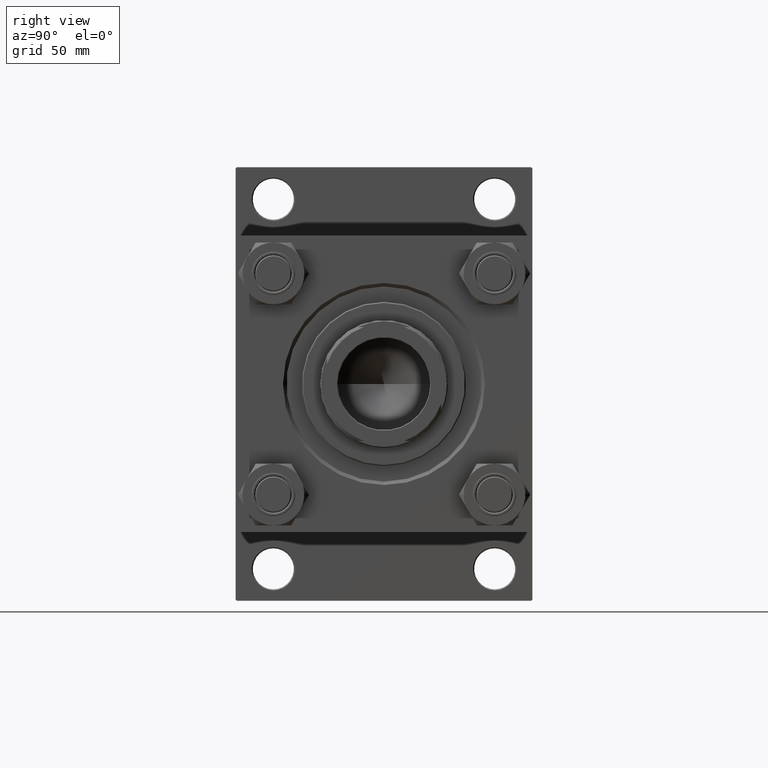
[diagram: clean part render]
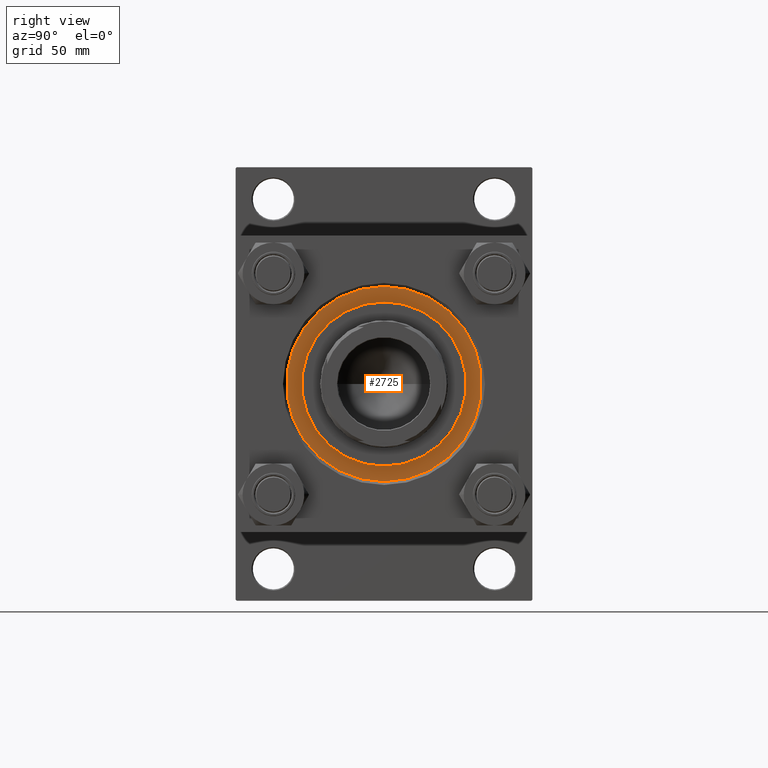
[diagram: same view with one face highlighted and labeled with its STEP entity id]
A machine part, right view. The second image highlights one B-rep face of the part: STEP entity #2725.
In plain terms, the highlighted planar face has unit normal (1, 0, 0).
Its self-contained STEP definition (entity closure, byte-faithful):
#2725 = ADVANCED_FACE ( 'NONE', ( #23687, #28254 ), #5003, .T. ) ;
#4136 = EDGE_CURVE ( 'NONE', #39025, #37371, #6841, .T. ) ;
#5003 = PLANE ( 'NONE',  #32868 ) ;
#6107 = DIRECTION ( 'NONE',  ( 1.000000000000000000, 0.000000000000000000, 0.000000000000000000 ) ) ;
#6841 = CIRCLE ( 'NONE', #10930, 42.75000000000000000 ) ;
#10105 = ORIENTED_EDGE ( 'NONE', *, *, #18329, .F. ) ;
#10124 = VERTEX_POINT ( 'NONE', #13379 ) ;
#10358 = AXIS2_PLACEMENT_3D ( 'NONE', #19509, #11323, #11572 ) ;
#10930 = AXIS2_PLACEMENT_3D ( 'NONE', #21459, #24783, #6107 ) ;
#11207 = CIRCLE ( 'NONE', #10358, 36.00000000000000000 ) ;
#11323 = DIRECTION ( 'NONE',  ( 0.000000000000000000, 0.000000000000000000, 1.000000000000000000 ) ) ;
#11572 = DIRECTION ( 'NONE',  ( 1.000000000000000000, 0.000000000000000000, 0.000000000000000000 ) ) ;
#12426 = ORIENTED_EDGE ( 'NONE', *, *, #28695, .F. ) ;
#13379 = CARTESIAN_POINT ( 'NONE',  ( -36.00000000000000000, 0.000000000000000000, 28.69999999999999929 ) ) ;
#15508 = ORIENTED_EDGE ( 'NONE', *, *, #32423, .T. ) ;
#18329 = EDGE_CURVE ( 'NONE', #10124, #18950, #33808, .T. ) ;
#18950 = VERTEX_POINT ( 'NONE', #25431 ) ;
#19509 = CARTESIAN_POINT ( 'NONE',  ( 0.000000000000000000, 0.000000000000000000, 28.69999999999999929 ) ) ;
#20113 = DIRECTION ( 'NONE',  ( 0.000000000000000000, 0.000000000000000000, 1.000000000000000000 ) ) ;
#21459 = CARTESIAN_POINT ( 'NONE',  ( 0.000000000000000000, 0.000000000000000000, 28.69999999999999929 ) ) ;
#21938 = AXIS2_PLACEMENT_3D ( 'NONE', #27656, #43231, #36054 ) ;
#23687 = FACE_BOUND ( 'NONE', #38931, .T. ) ;
#24783 = DIRECTION ( 'NONE',  ( 0.000000000000000000, 0.000000000000000000, 1.000000000000000000 ) ) ;
#24941 = DIRECTION ( 'NONE',  ( 1.000000000000000000, 0.000000000000000000, -0.000000000000000000 ) ) ;
#25431 = CARTESIAN_POINT ( 'NONE',  ( 36.00000000000000000, 4.408728476930470856E-15, 28.69999999999999929 ) ) ;
#26166 = ORIENTED_EDGE ( 'NONE', *, *, #4136, .T. ) ;
#27656 = CARTESIAN_POINT ( 'NONE',  ( 0.000000000000000000, 0.000000000000000000, 28.69999999999999929 ) ) ;
#28113 = AXIS2_PLACEMENT_3D ( 'NONE', #31451, #39103, #42951 ) ;
#28254 = FACE_OUTER_BOUND ( 'NONE', #44477, .T. ) ;
#28695 = EDGE_CURVE ( 'NONE', #18950, #10124, #11207, .T. ) ;
#29904 = CARTESIAN_POINT ( 'NONE',  ( 42.75000000000000000, 5.235365066354935472E-15, 28.69999999999999929 ) ) ;
#31451 = CARTESIAN_POINT ( 'NONE',  ( 0.000000000000000000, 0.000000000000000000, 28.69999999999999929 ) ) ;
#32423 = EDGE_CURVE ( 'NONE', #37371, #39025, #43939, .T. ) ;
#32868 = AXIS2_PLACEMENT_3D ( 'NONE', #43844, #20113, #24941 ) ;
#33808 = CIRCLE ( 'NONE', #28113, 36.00000000000000000 ) ;
#34135 = CARTESIAN_POINT ( 'NONE',  ( -42.75000000000000000, 0.000000000000000000, 28.69999999999999929 ) ) ;
#36054 = DIRECTION ( 'NONE',  ( 1.000000000000000000, 0.000000000000000000, 0.000000000000000000 ) ) ;
#37371 = VERTEX_POINT ( 'NONE', #34135 ) ;
#38931 = EDGE_LOOP ( 'NONE', ( #10105, #12426 ) ) ;
#39025 = VERTEX_POINT ( 'NONE', #29904 ) ;
#39103 = DIRECTION ( 'NONE',  ( 0.000000000000000000, 0.000000000000000000, 1.000000000000000000 ) ) ;
#42951 = DIRECTION ( 'NONE',  ( 1.000000000000000000, 0.000000000000000000, 0.000000000000000000 ) ) ;
#43231 = DIRECTION ( 'NONE',  ( 0.000000000000000000, 0.000000000000000000, 1.000000000000000000 ) ) ;
#43844 = CARTESIAN_POINT ( 'NONE',  ( 0.000000000000000000, 0.000000000000000000, 28.69999999999999929 ) ) ;
#43939 = CIRCLE ( 'NONE', #21938, 42.75000000000000000 ) ;
#44477 = EDGE_LOOP ( 'NONE', ( #15508, #26166 ) ) ;